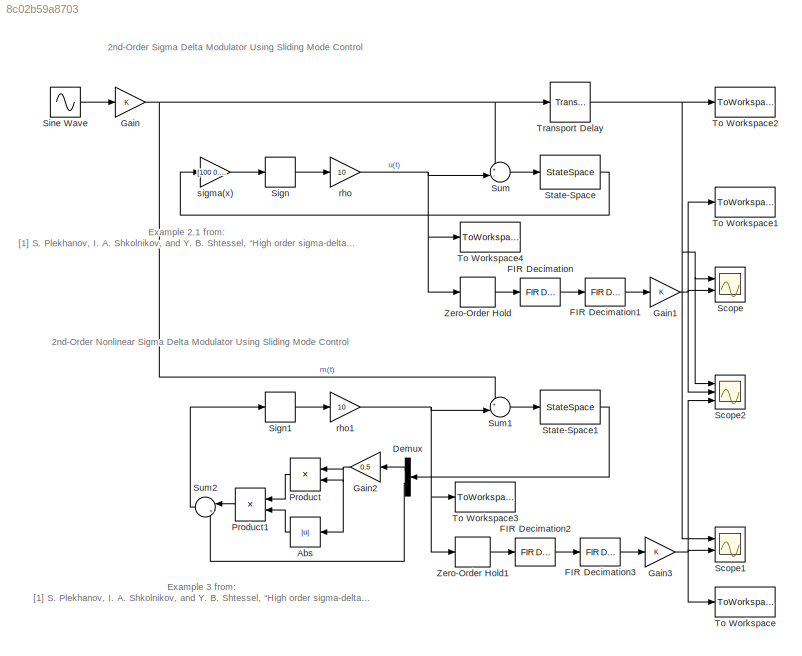
MODEL slx_8c02b59a8703
KIND model
CONFIG AbsTol = auto
CONFIG EnableMultiTasking = off
CONFIG FixedStep = 1/512000
CONFIG MaxStep = auto
CONFIG MinStep = auto
CONFIG RelTol = 1e-3
CONFIG SampleTimeConstraint = Unconstrained
CONFIG Solver = FixedStepAuto
CONFIG SolverName = FixedStepAuto
CONFIG StartTime = 0.0
CONFIG StopTime = 10
BLOCK [Abs] Abs
  SaturateOnIntegerOverflow = off
BLOCK [Demux] Demux
  DisplayOption = bar
  Outputs = 2
  Ports = [1, 2]
BLOCK [Reference] FIR Decimation  REF=dspmlti4/FIR
Decimation
  Ports = [1, 1]
  SourceBlock = dspmlti4/FIR\nDecimation
  SourceProductBaseCode = DS
  SourceProductName = DSP System Toolbox
  SourceType = FIR Decimation
  UserDataPersistent = on
BLOCK [Reference] FIR Decimation1  REF=dspmlti4/FIR
Decimation
  Ports = [1, 1]
  SourceBlock = dspmlti4/FIR\nDecimation
  SourceProductBaseCode = DS
  SourceProductName = DSP System Toolbox
  SourceType = FIR Decimation
  UserDataPersistent = on
BLOCK [Reference] FIR Decimation2  REF=dspmlti4/FIR
Decimation
  Ports = [1, 1]
  SourceBlock = dspmlti4/FIR\nDecimation
  SourceProductBaseCode = DS
  SourceProductName = DSP System Toolbox
  SourceType = FIR Decimation
  UserDataPersistent = on
BLOCK [Reference] FIR Decimation3  REF=dspmlti4/FIR
Decimation
  Ports = [1, 1]
  SourceBlock = dspmlti4/FIR\nDecimation
  SourceProductBaseCode = DS
  SourceProductName = DSP System Toolbox
  SourceType = FIR Decimation
  UserDataPersistent = on
BLOCK [Gain] Gain
  OutDataTypeStr = Inherit: Inherit via internal rule
  ParamDataTypeStr = Inherit: Inherit via internal rule
  SaturateOnIntegerOverflow = off
BLOCK [Gain] Gain1
  OutDataTypeStr = Inherit: Inherit via internal rule
  ParamDataTypeStr = Inherit: Inherit via internal rule
  SaturateOnIntegerOverflow = off
BLOCK [Gain] Gain2
  Gain = 0.5
  OutDataTypeStr = Inherit: Inherit via internal rule
  ParamDataTypeStr = Inherit: Inherit via internal rule
  SaturateOnIntegerOverflow = off
BLOCK [Gain] Gain3
  OutDataTypeStr = Inherit: Inherit via internal rule
  ParamDataTypeStr = Inherit: Inherit via internal rule
  SaturateOnIntegerOverflow = off
BLOCK [Product] Product
  InputSameDT = off
  OutDataTypeStr = Inherit: Inherit via internal rule
  Ports = [2, 1]
  RndMeth = Floor
  SaturateOnIntegerOverflow = off
BLOCK [Product] Product1
  InputSameDT = off
  OutDataTypeStr = Inherit: Inherit via internal rule
  Ports = [2, 1]
  RndMeth = Floor
  SaturateOnIntegerOverflow = off
BLOCK [Scope] Scope
  NumInputPorts = 2
  Ports = [2]
  ScopeSpecificationString = Simulink.scopes.TimeScopeBlockCfg('CurrentConfiguration', extmgr.ConfigurationSet(extmgr.Configuration('Core','General UI',true),extmgr.Configuration('Core','Source UI',true),extmgr.Configuration('Sources','WiredSimulink',true),extmgr.Configuration('Visuals','Time Domain',true,'SerializedDisplays',{struct('MinYLimReal','-3.10431','MaxYLimReal','3.10465','YLabelReal','','MinYLimMag','0.00000','MaxY...<+1443ch>
BLOCK [Scope] Scope1
  NumInputPorts = 2
  Ports = [2]
  ScopeSpecificationString = Simulink.scopes.TimeScopeBlockCfg('CurrentConfiguration', extmgr.ConfigurationSet(extmgr.Configuration('Core','General UI',true),extmgr.Configuration('Core','Source UI',true),extmgr.Configuration('Sources','WiredSimulink',true,'DataLoggingVariableName','ScopeData1'),extmgr.Configuration('Visuals','Time Domain',true,'SerializedDisplays',{struct('MinYLimReal','-3.10431','MaxYLimReal','3.10465','YLab...<+1483ch>
BLOCK [Scope] Scope2
  NumInputPorts = 3
  Ports = [3]
  ScopeSpecificationString = Simulink.scopes.TimeScopeBlockCfg('CurrentConfiguration', extmgr.ConfigurationSet(extmgr.Configuration('Core','General UI',true),extmgr.Configuration('Core','Source UI',true),extmgr.Configuration('Sources','WiredSimulink',true,'DataLoggingVariableName','ScopeData2'),extmgr.Configuration('Visuals','Time Domain',true,'SerializedDisplays',{struct('MinYLimReal','-1.19454','MaxYLimReal','1.19438','YLab...<+1466ch>
BLOCK [Signum] Sign
BLOCK [Signum] Sign1
BLOCK [Sin] Sine Wave
  Frequency = 2*pi*100
  Ports = [0, 1]
  SampleTime = 0
BLOCK [StateSpace] State-Space
  A = [0 1; 0 0]
  B = [0; 1]
  C = [1 0; 0 1]
  D = [0; 0]
  Ports = [1, 1]
  X0 = 0
BLOCK [StateSpace] State-Space1
  A = [0 1; 0 0]
  B = [0; 1]
  C = [1 0; 0 1]
  D = [0; 0]
  Ports = [1, 1]
  X0 = 0
BLOCK [Sum] Sum
  IconShape = round
  InputSameDT = off
  Inputs = +-|
  OutDataTypeStr = Inherit: Inherit via internal rule
  Ports = [2, 1]
  SaturateOnIntegerOverflow = off
BLOCK [Sum] Sum1
  IconShape = round
  InputSameDT = off
  Inputs = +-|
  OutDataTypeStr = Inherit: Inherit via internal rule
  Ports = [2, 1]
  SaturateOnIntegerOverflow = off
BLOCK [Sum] Sum2
  IconShape = round
  InputSameDT = off
  Inputs = |++
  OutDataTypeStr = Inherit: Inherit via internal rule
  Ports = [2, 1]
  SaturateOnIntegerOverflow = off
BLOCK [ToWorkspace] To Workspace
  FixptAsFi = on
  MaxDataPoints = inf
  Ports = [1]
  SampleTime = -1
  Save2DSignal = 3-D array (concatenate along third dimension)
  SaveFormat = Timeseries
  VariableName = y_nl
BLOCK [ToWorkspace] To Workspace1
  FixptAsFi = on
  MaxDataPoints = inf
  Ports = [1]
  SampleTime = -1
  Save2DSignal = 3-D array (concatenate along third dimension)
  SaveFormat = Timeseries
  VariableName = y_ip
BLOCK [ToWorkspace] To Workspace2
  FixptAsFi = on
  MaxDataPoints = inf
  Ports = [1]
  SampleTime = -1
  Save2DSignal = 3-D array (concatenate along third dimension)
  SaveFormat = Timeseries
  VariableName = m
BLOCK [ToWorkspace] To Workspace3
  FixptAsFi = on
  MaxDataPoints = inf
  Ports = [1]
  SampleTime = -1
  Save2DSignal = 3-D array (concatenate along third dimension)
  SaveFormat = Timeseries
  VariableName = u_nl
BLOCK [ToWorkspace] To Workspace4
  FixptAsFi = on
  MaxDataPoints = inf
  Ports = [1]
  SampleTime = -1
  Save2DSignal = 3-D array (concatenate along third dimension)
  SaveFormat = Timeseries
  VariableName = u_ip
BLOCK [TransportDelay] Transport Delay
  DelayTime = 144/512000
  Ports = [1, 1]
BLOCK [ZeroOrderHold] Zero-Order Hold
  SampleTime = 1/512000
BLOCK [ZeroOrderHold] Zero-Order Hold1
  SampleTime = 1/512000
BLOCK [Gain] rho
  Gain = 10
  OutDataTypeStr = Inherit: Inherit via internal rule
  ParamDataTypeStr = Inherit: Inherit via internal rule
  SaturateOnIntegerOverflow = off
BLOCK [Gain] rho1
  Gain = 10
  OutDataTypeStr = Inherit: Inherit via internal rule
  ParamDataTypeStr = Inherit: Inherit via internal rule
  SaturateOnIntegerOverflow = off
BLOCK [Gain] sigma(x)
  Gain = [100 0.01]
  Multiplication = Matrix(K*u) (u vector)
  OutDataTypeStr = Inherit: Inherit via internal rule
  ParamDataTypeStr = Inherit: Inherit via internal rule
  SaturateOnIntegerOverflow = off
ANNOTATION (root): 2nd-Order Nonlinear Sigma Delta Modulator Using Sliding Mode Control
ANNOTATION (root): 2nd-Order Sigma Delta Modulator Using Sliding Mode Control
ANNOTATION (root): Example 2.1 from: [1] S. Plekhanov, I. A. Shkolnikov, and Y. B. Shtessel, “High order sigma-delta modulator design via sliding mode control,” Proc. 2003 Am. Control Conf. 2003. , vol. 1, pp. 897–902, 2003.
ANNOTATION (root): Example 3 from: [1] S. Plekhanov, I. A. Shkolnikov, and Y. B. Shtessel, “High order sigma-delta modulator design via sliding mode control,” Proc. 2003 Am. Control Conf. 2003. , vol. 1, pp. 897–902, 2003.
LINE Abs:1 -> Product1:2
LINE Demux:1 -> Gain2:1
LINE Demux:2 -> Sum2:2
LINE FIR Decimation1:1 -> Gain1:1
LINE FIR Decimation2:1 -> FIR Decimation3:1
LINE FIR Decimation3:1 -> Gain3:1
LINE FIR Decimation:1 -> FIR Decimation1:1
NET Gain1:1 -> Scope2:2, Scope:2, To Workspace1:1
NET Gain2:1 -> Abs:1, Product:1, Product:2
NET Gain3:1 -> Scope1:2, Scope2:3, To Workspace:1
NET Gain:1 -> Sum1:1, Sum:1, Transport Delay:1
LINE Product1:1 -> Sum2:1
LINE Product:1 -> Product1:1
LINE Sign1:1 -> rho1:1
LINE Sign:1 -> rho:1
LINE Sine Wave:1 -> Gain:1
LINE State-Space1:1 -> Demux:1
LINE State-Space:1 -> sigma(x):1
LINE Sum1:1 -> State-Space1:1
LINE Sum2:1 -> Sign1:1
LINE Sum:1 -> State-Space:1
NET Transport Delay:1 -> Scope1:1, Scope2:1, Scope:1, To Workspace2:1
LINE Zero-Order Hold1:1 -> FIR Decimation2:1
LINE Zero-Order Hold:1 -> FIR Decimation:1
NET rho1:1 -> Sum1:2, To Workspace3:1, Zero-Order Hold1:1
NET rho:1 -> Sum:2, To Workspace4:1, Zero-Order Hold:1
LINE sigma(x):1 -> Sign:1
note: NET lines group one-source signal fan-out (src -> all destinations, sorted); 1:1 wires keep LINE
